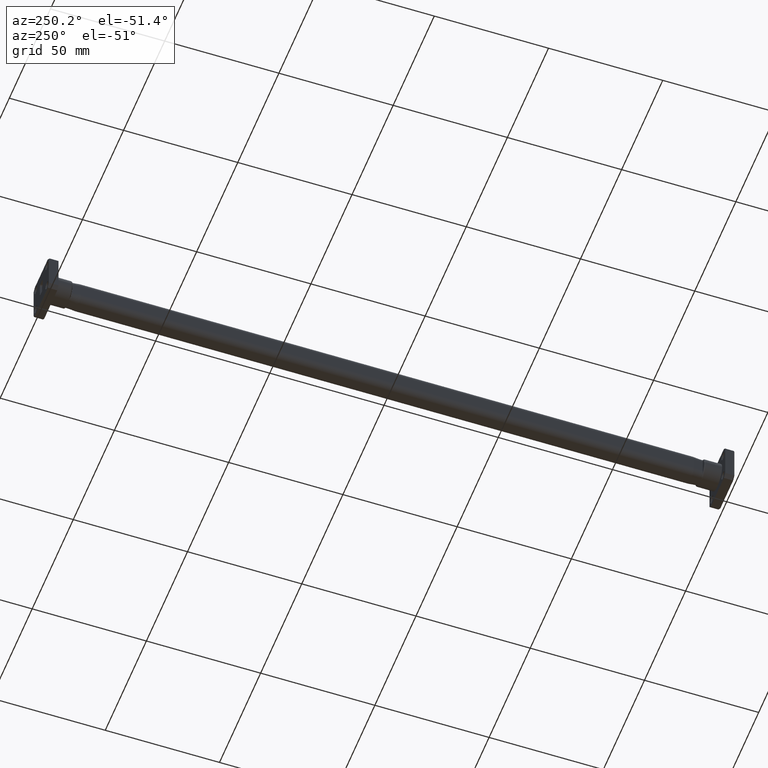
[diagram: clean part render]
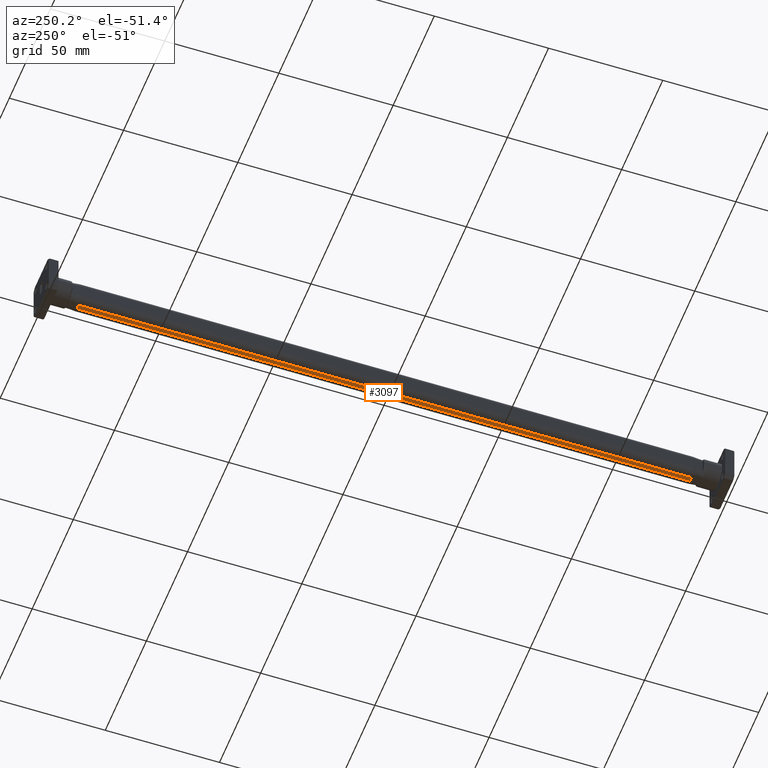
[diagram: same view with one face highlighted and labeled with its STEP entity id]
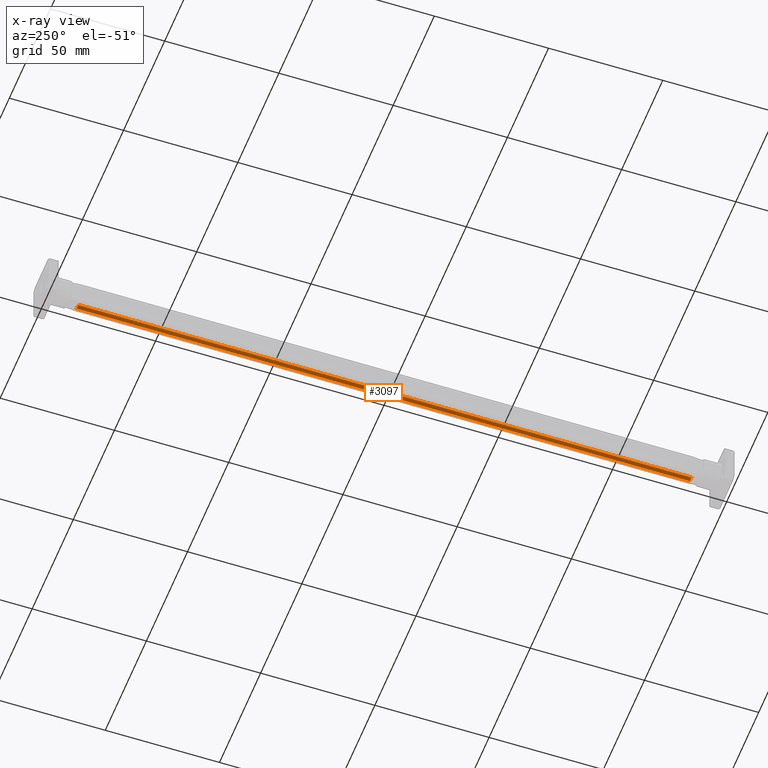
[diagram: x-ray of the same camera — body ghosted, the highlighted face saturated]
A machine part, auxiliary view. The second image highlights one B-rep face of the part: STEP entity #3097.
The next image is the same camera in x-ray: the body ghosted, the highlighted face saturated — about 0% of this face is hidden behind the body in this view.
In plain terms, the highlighted planar face has unit normal (0, 0, 1).
Its self-contained STEP definition (entity closure, byte-faithful):
#51 = CARTESIAN_POINT ( 'NONE',  ( 0.03937007874015670300, 1.322834645669291700, -0.2362204724409456800 ) ) ;
#347 = CARTESIAN_POINT ( 'NONE',  ( 0.03937007874015670300, 0.6220472440923464600, -0.2362204724407812600 ) ) ;
#418 = CARTESIAN_POINT ( 'NONE',  ( -0.03937007874015846500, 1.322834645669291700, -0.2362204724409455200 ) ) ;
#626 = VERTEX_POINT ( 'NONE', #820 ) ;
#627 = ORIENTED_EDGE ( 'NONE', *, *, #651, .F. ) ;
#634 = VECTOR ( 'NONE', #1704, 39.37007874015748100 ) ;
#651 = EDGE_CURVE ( 'Defeatured_0_16+Defeatured_0_19+Defeatured_0_8+Defeatured_0_25', #1499, #1875, #3803, .T. ) ;
#751 = CARTESIAN_POINT ( 'NONE',  ( -0.03937007874015846500, 11.18897637795275700, -0.2362204724409455200 ) ) ;
#820 = CARTESIAN_POINT ( 'NONE',  ( -0.03937007874015846500, 11.18897637795275400, -0.2362204724409455200 ) ) ;
#972 = VECTOR ( 'NONE', #1645, 39.37007874015748100 ) ;
#1029 = EDGE_CURVE ( 'Defeatured_0_12+Defeatured_0_19+Defeatured_0_21+Defeatured_0_4', #1985, #626, #1594, .T. ) ;
#1069 = DIRECTION ( 'NONE',  ( 2.747801985947263200E-015, 0.0000000000000000000, 1.000000000000000000 ) ) ;
#1210 = ORIENTED_EDGE ( 'NONE', *, *, #2419, .F. ) ;
#1308 = EDGE_LOOP ( 'NONE', ( #3747, #1210, #627, #2626 ) ) ;
#1317 = CARTESIAN_POINT ( 'NONE',  ( -0.03937007874015846500, 0.6220472440944879700, -0.2362204724409455200 ) ) ;
#1397 = CARTESIAN_POINT ( 'NONE',  ( -0.03937007874015846500, 0.6220472440944879700, -0.2362204724409455200 ) ) ;
#1499 = VERTEX_POINT ( 'NONE', #1317 ) ;
#1594 = LINE ( 'NONE', #751, #634 ) ;
#1645 = DIRECTION ( 'NONE',  ( 0.0000000000000000000, -1.000000000000000000, 0.0000000000000000000 ) ) ;
#1700 = CARTESIAN_POINT ( 'NONE',  ( 0.03937007874015670300, 11.18897637795375700, -0.2362204724407812300 ) ) ;
#1704 = DIRECTION ( 'NONE',  ( -1.000000000000000000, 0.0000000000000000000, 2.747801985947263200E-015 ) ) ;
#1838 = LINE ( 'NONE', #3944, #972 ) ;
#1875 = VERTEX_POINT ( 'NONE', #347 ) ;
#1985 = VERTEX_POINT ( 'NONE', #1700 ) ;
#2054 = VECTOR ( 'NONE', #3620, 39.37007874015748100 ) ;
#2158 = LINE ( 'NONE', #51, #2054 ) ;
#2419 = EDGE_CURVE ( 'Defeatured_0_27+Defeatured_0_19+Defeatured_0_25+Defeatured_0_21', #1875, #1985, #2158, .T. ) ;
#2626 = ORIENTED_EDGE ( 'NONE', *, *, #3615, .F. ) ;
#3097 = ADVANCED_FACE ( 'Defeatured_0_19', ( #3098 ), #4024, .F. ) ;
#3098 = FACE_OUTER_BOUND ( 'NONE', #1308, .T. ) ;
#3383 = DIRECTION ( 'NONE',  ( -1.000000000000000000, 0.0000000000000000000, 2.747801985947263200E-015 ) ) ;
#3487 = DIRECTION ( 'NONE',  ( 1.000000000000000000, -0.0000000000000000000, -2.747801985947263200E-015 ) ) ;
#3615 = EDGE_CURVE ( 'Defeatured_0_11+Defeatured_0_19+Defeatured_0_4+Defeatured_0_8', #626, #1499, #1838, .T. ) ;
#3620 = DIRECTION ( 'NONE',  ( -0.0000000000000000000, 1.000000000000000000, -0.0000000000000000000 ) ) ;
#3747 = ORIENTED_EDGE ( 'NONE', *, *, #1029, .F. ) ;
#3803 = LINE ( 'NONE', #1397, #4014 ) ;
#3944 = CARTESIAN_POINT ( 'NONE',  ( -0.03937007874015846500, 1.322834645669291700, -0.2362204724409455200 ) ) ;
#4014 = VECTOR ( 'NONE', #3487, 39.37007874015748100 ) ;
#4024 = PLANE ( 'NONE',  #4073 ) ;
#4073 = AXIS2_PLACEMENT_3D ( 'NONE', #418, #1069, #3383 ) ;